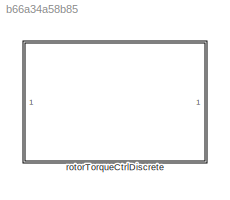
MODEL slx_b66a34a58b85
KIND library
CONFIG AbsTol = auto
CONFIG EnableMultiTasking = off
CONFIG FixedStep = auto
CONFIG MaxStep = auto
CONFIG MinStep = auto
CONFIG RelTol = 1e-3
CONFIG SampleTimeConstraint = Unconstrained
CONFIG SolverName = VariableStepAuto
CONFIG StartTime = 0.0
CONFIG StopTime = 10.0
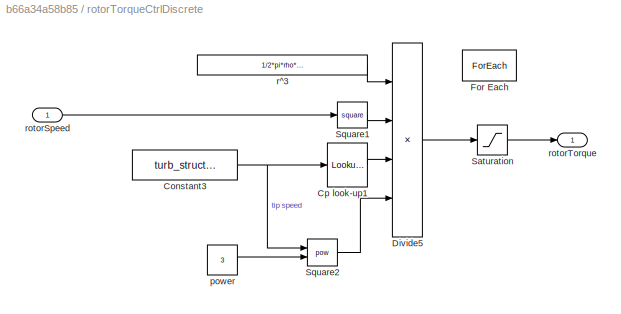
BLOCK [SubSystem] rotorTorqueCtrlDiscrete
  Ports = [1, 1]
  RequestExecContextInheritance = off
  TreatAsAtomicUnit = on
BLOCK [Constant] rotorTorqueCtrlDiscrete/Constant3
  Value = turb_struct.optTSR
BLOCK [Lookup_n-D] rotorTorqueCtrlDiscrete/Cp look-up1
  BreakpointsForDimension1 = turb_struct.RPMref
  InputPortMap = u0
  InternalRulePriority = Speed
  NumberOfTableDimensions = 1
  Ports = [1, 1]
  RndMeth = Simplest
  Table = turb_struct.CpLookup
BLOCK [Product] rotorTorqueCtrlDiscrete/Divide5
  Inputs = ***/
  Ports = [4, 1]
BLOCK [ForEach] rotorTorqueCtrlDiscrete/For Each
  DisableCoverage = on
  IterateSubsysMaskParameter = on,off
  Ports = []
  SubsysMaskParameterIterationDimension = 2,1
  SubsysMaskParameterIterationStepSize = 1,1
BLOCK [Saturate] rotorTorqueCtrlDiscrete/Saturation
  LowerLimit = -42
  UpperLimit = 42
BLOCK [Math] rotorTorqueCtrlDiscrete/Square1
  Operator = square
  Ports = [1, 1]
BLOCK [Math] rotorTorqueCtrlDiscrete/Square2
  Operator = pow
  Ports = [2, 1]
BLOCK [Constant] rotorTorqueCtrlDiscrete/power
  Value = 3
BLOCK [Constant] rotorTorqueCtrlDiscrete/r^3
  Value = 1/2*pi*rho*(turb_struct.diameter/2)^5
BLOCK [Inport] rotorTorqueCtrlDiscrete/rotorSpeed
  Partition = on
  PartitionDimension = 1
  PartitionOffset = 0
  PartitionWidth = 1
BLOCK [Outport] rotorTorqueCtrlDiscrete/rotorTorque
  ConcatenationDimension = 1
NET rotorTorqueCtrlDiscrete/Constant3:1 -> rotorTorqueCtrlDiscrete/Cp look-up1:1, rotorTorqueCtrlDiscrete/Square2:1
LINE rotorTorqueCtrlDiscrete/Cp look-up1:1 -> rotorTorqueCtrlDiscrete/Divide5:3
LINE rotorTorqueCtrlDiscrete/Divide5:1 -> rotorTorqueCtrlDiscrete/Saturation:1
LINE rotorTorqueCtrlDiscrete/Saturation:1 -> rotorTorqueCtrlDiscrete/rotorTorque:1
LINE rotorTorqueCtrlDiscrete/Square1:1 -> rotorTorqueCtrlDiscrete/Divide5:2
LINE rotorTorqueCtrlDiscrete/Square2:1 -> rotorTorqueCtrlDiscrete/Divide5:4
LINE rotorTorqueCtrlDiscrete/power:1 -> rotorTorqueCtrlDiscrete/Square2:2
LINE rotorTorqueCtrlDiscrete/r^3:1 -> rotorTorqueCtrlDiscrete/Divide5:1
LINE rotorTorqueCtrlDiscrete/rotorSpeed:1 -> rotorTorqueCtrlDiscrete/Square1:1
note: NET lines group one-source signal fan-out (src -> all destinations, sorted); 1:1 wires keep LINE
